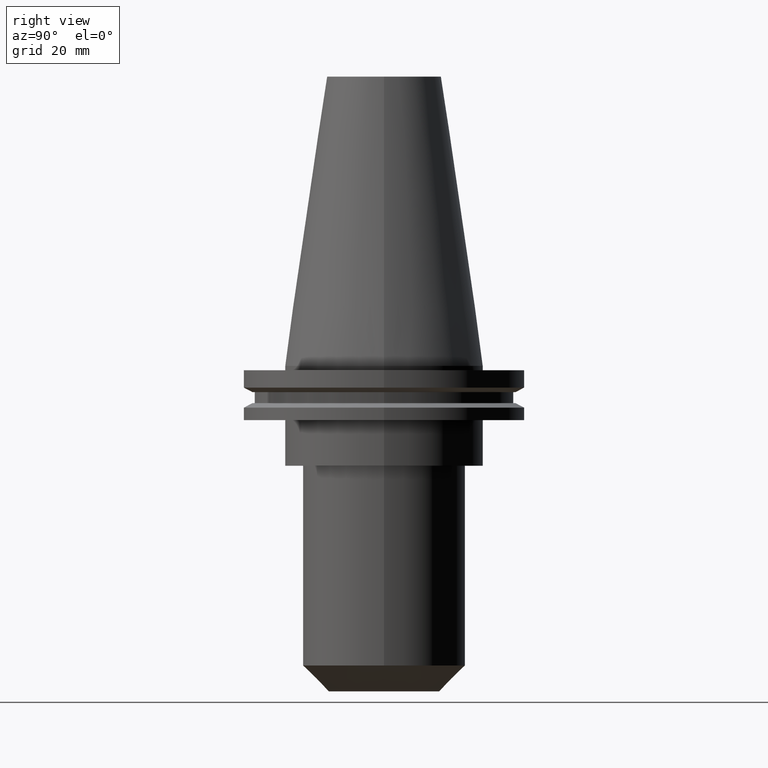
[diagram: clean part render]
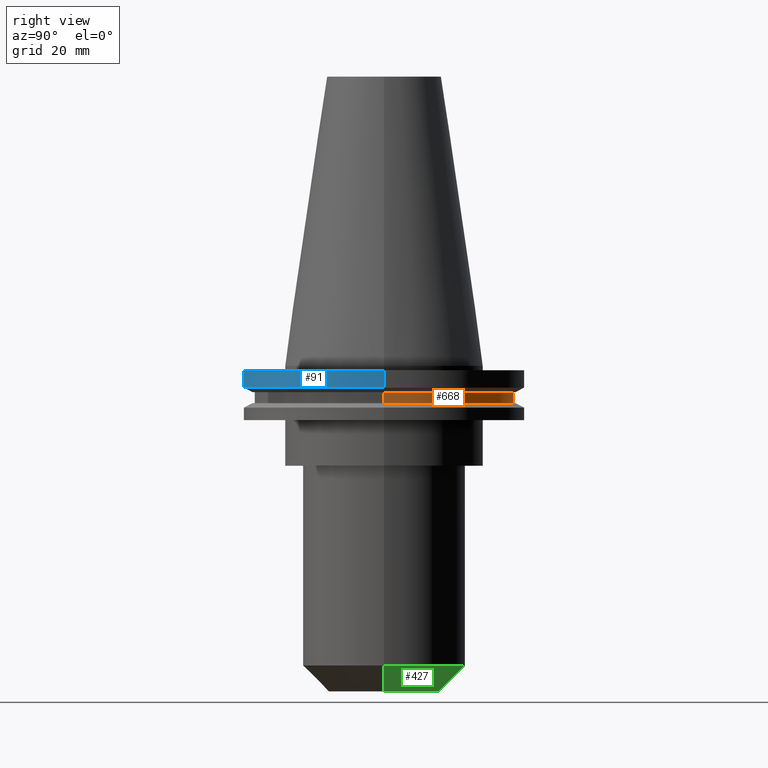
[diagram: same view with three faces highlighted in distinct colors, each labeled with its STEP entity id]
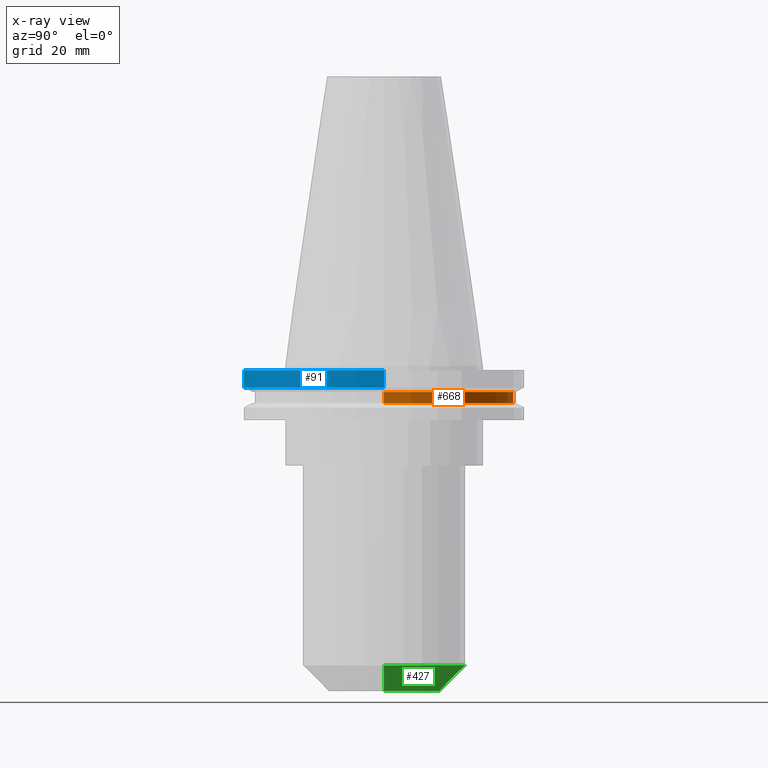
[diagram: x-ray of the same camera — body ghosted, the three highlighted faces saturated]
A machine part, right view with three faces highlighted in distinct colors.
The next image is the same camera in x-ray (body ghosted, the three faces saturated) — at least one of them is partly hidden behind the body in this view.
Their STEP definitions:

[orange] entity #668 — the highlighted cylindrical surface (partial cylindrical patch) has radius 45.645 mm, axis along (-0, -0, 1).
#15 = CARTESIAN_POINT ( 'NONE',  ( 0.000000000000000000, 0.000000000000000000, -9.204999999999991189 ) ) ;
#31 = CARTESIAN_POINT ( 'NONE',  ( -45.64500000000000313, 5.589900314708094957E-15, -9.204999999999991189 ) ) ;
#44 = ORIENTED_EDGE ( 'NONE', *, *, #213, .F. ) ;
#94 = CARTESIAN_POINT ( 'NONE',  ( 45.64500000000000313, 0.000000000000000000, 101.5999999999999943 ) ) ;
#136 = CARTESIAN_POINT ( 'NONE',  ( 0.000000000000000000, 0.000000000000000000, -13.05499999999999794 ) ) ;
#140 = DIRECTION ( 'NONE',  ( -0.000000000000000000, -0.000000000000000000, 1.000000000000000000 ) ) ;
#143 = CARTESIAN_POINT ( 'NONE',  ( 0.000000000000000000, 0.000000000000000000, 101.5999999999999943 ) ) ;
#148 = VECTOR ( 'NONE', #816, 1000.000000000000000 ) ;
#196 = LINE ( 'NONE', #279, #562 ) ;
#199 = AXIS2_PLACEMENT_3D ( 'NONE', #136, #408, #675 ) ;
#205 = DIRECTION ( 'NONE',  ( 1.000000000000000000, 0.000000000000000000, 0.000000000000000000 ) ) ;
#213 = EDGE_CURVE ( 'NONE', #638, #412, #824, .T. ) ;
#279 = CARTESIAN_POINT ( 'NONE',  ( -45.64500000000000313, 5.589900314708094957E-15, 101.5999999999999943 ) ) ;
#282 = DIRECTION ( 'NONE',  ( -0.000000000000000000, -0.000000000000000000, 1.000000000000000000 ) ) ;
#283 = AXIS2_PLACEMENT_3D ( 'NONE', #143, #670, #205 ) ;
#309 = LINE ( 'NONE', #94, #148 ) ;
#349 = AXIS2_PLACEMENT_3D ( 'NONE', #15, #282, #359 ) ;
#352 = EDGE_LOOP ( 'NONE', ( #736, #628, #44, #508 ) ) ;
#359 = DIRECTION ( 'NONE',  ( 1.000000000000000000, 0.000000000000000000, 0.000000000000000000 ) ) ;
#371 = EDGE_CURVE ( 'NONE', #485, #638, #309, .T. ) ;
#405 = FACE_OUTER_BOUND ( 'NONE', #352, .T. ) ;
#408 = DIRECTION ( 'NONE',  ( -0.000000000000000000, -0.000000000000000000, 1.000000000000000000 ) ) ;
#412 = VERTEX_POINT ( 'NONE', #31 ) ;
#447 = VERTEX_POINT ( 'NONE', #625 ) ;
#479 = CARTESIAN_POINT ( 'NONE',  ( 45.64500000000000313, 0.000000000000000000, -9.204999999999991189 ) ) ;
#485 = VERTEX_POINT ( 'NONE', #660 ) ;
#508 = ORIENTED_EDGE ( 'NONE', *, *, #371, .F. ) ;
#562 = VECTOR ( 'NONE', #140, 1000.000000000000000 ) ;
#608 = EDGE_CURVE ( 'NONE', #447, #412, #196, .T. ) ;
#625 = CARTESIAN_POINT ( 'NONE',  ( -45.64500000000000313, 5.589900314708094957E-15, -13.05499999999999794 ) ) ;
#628 = ORIENTED_EDGE ( 'NONE', *, *, #608, .T. ) ;
#638 = VERTEX_POINT ( 'NONE', #479 ) ;
#653 = CIRCLE ( 'NONE', #199, 45.64500000000000313 ) ;
#660 = CARTESIAN_POINT ( 'NONE',  ( 45.64500000000000313, 0.000000000000000000, -13.05499999999999794 ) ) ;
#668 = ADVANCED_FACE ( 'NONE', ( #405 ), #799, .T. ) ;
#670 = DIRECTION ( 'NONE',  ( -0.000000000000000000, -0.000000000000000000, 1.000000000000000000 ) ) ;
#675 = DIRECTION ( 'NONE',  ( 1.000000000000000000, 0.000000000000000000, 0.000000000000000000 ) ) ;
#694 = EDGE_CURVE ( 'NONE', #485, #447, #653, .T. ) ;
#736 = ORIENTED_EDGE ( 'NONE', *, *, #694, .T. ) ;
#799 = CYLINDRICAL_SURFACE ( 'NONE', #283, 45.64500000000000313 ) ;
#816 = DIRECTION ( 'NONE',  ( -0.000000000000000000, -0.000000000000000000, 1.000000000000000000 ) ) ;
#824 = CIRCLE ( 'NONE', #349, 45.64500000000000313 ) ;

[blue] entity #91 — the highlighted cylindrical surface (partial cylindrical patch) has radius 49.215 mm, axis along (-0, -0, 1).
#14 = ORIENTED_EDGE ( 'NONE', *, *, #493, .F. ) ;
#37 = ORIENTED_EDGE ( 'NONE', *, *, #490, .F. ) ;
#55 = CARTESIAN_POINT ( 'NONE',  ( -49.21499999999999631, 6.027099222003697826E-15, -1.499999999999987566 ) ) ;
#91 = ADVANCED_FACE ( 'NONE', ( #181 ), #320, .T. ) ;
#93 = ORIENTED_EDGE ( 'NONE', *, *, #431, .T. ) ;
#97 = CARTESIAN_POINT ( 'NONE',  ( 0.000000000000000000, 0.000000000000000000, -7.602389855251287187 ) ) ;
#110 = VECTOR ( 'NONE', #436, 1000.000000000000000 ) ;
#121 = CIRCLE ( 'NONE', #468, 49.21499999999999631 ) ;
#129 = DIRECTION ( 'NONE',  ( -0.000000000000000000, -0.000000000000000000, 1.000000000000000000 ) ) ;
#133 = CARTESIAN_POINT ( 'NONE',  ( 0.000000000000000000, 0.000000000000000000, 101.5999999999999943 ) ) ;
#153 = VERTEX_POINT ( 'NONE', #55 ) ;
#166 = CARTESIAN_POINT ( 'NONE',  ( 49.21499999999999631, 0.000000000000000000, 101.5999999999999943 ) ) ;
#181 = FACE_OUTER_BOUND ( 'NONE', #406, .T. ) ;
#184 = DIRECTION ( 'NONE',  ( -0.000000000000000000, -0.000000000000000000, 1.000000000000000000 ) ) ;
#200 = VECTOR ( 'NONE', #385, 1000.000000000000000 ) ;
#320 = CYLINDRICAL_SURFACE ( 'NONE', #658, 49.21499999999999631 ) ;
#326 = CARTESIAN_POINT ( 'NONE',  ( -49.21499999999999631, 6.027099222003697826E-15, 101.5999999999999943 ) ) ;
#347 = ORIENTED_EDGE ( 'NONE', *, *, #812, .T. ) ;
#385 = DIRECTION ( 'NONE',  ( -0.000000000000000000, -0.000000000000000000, 1.000000000000000000 ) ) ;
#388 = CARTESIAN_POINT ( 'NONE',  ( 49.21500000000000341, 0.000000000000000000, -7.602389855251287187 ) ) ;
#406 = EDGE_LOOP ( 'NONE', ( #14, #347, #93, #37 ) ) ;
#431 = EDGE_CURVE ( 'NONE', #591, #526, #753, .T. ) ;
#436 = DIRECTION ( 'NONE',  ( -0.000000000000000000, -0.000000000000000000, 1.000000000000000000 ) ) ;
#466 = CARTESIAN_POINT ( 'NONE',  ( -49.21500000000000341, 6.027099222003699404E-15, -7.602389855251287187 ) ) ;
#468 = AXIS2_PLACEMENT_3D ( 'NONE', #534, #184, #783 ) ;
#490 = EDGE_CURVE ( 'NONE', #153, #526, #121, .T. ) ;
#493 = EDGE_CURVE ( 'NONE', #685, #153, #780, .T. ) ;
#526 = VERTEX_POINT ( 'NONE', #531 ) ;
#531 = CARTESIAN_POINT ( 'NONE',  ( 49.21499999999999631, 0.000000000000000000, -1.499999999999987566 ) ) ;
#534 = CARTESIAN_POINT ( 'NONE',  ( 0.000000000000000000, 0.000000000000000000, -1.499999999999987566 ) ) ;
#565 = DIRECTION ( 'NONE',  ( -0.000000000000000000, -0.000000000000000000, 1.000000000000000000 ) ) ;
#591 = VERTEX_POINT ( 'NONE', #388 ) ;
#658 = AXIS2_PLACEMENT_3D ( 'NONE', #133, #129, #671 ) ;
#671 = DIRECTION ( 'NONE',  ( 1.000000000000000000, 0.000000000000000000, 0.000000000000000000 ) ) ;
#685 = VERTEX_POINT ( 'NONE', #466 ) ;
#715 = CIRCLE ( 'NONE', #737, 49.21500000000000341 ) ;
#737 = AXIS2_PLACEMENT_3D ( 'NONE', #97, #565, #813 ) ;
#753 = LINE ( 'NONE', #166, #110 ) ;
#780 = LINE ( 'NONE', #326, #200 ) ;
#783 = DIRECTION ( 'NONE',  ( 1.000000000000000000, 0.000000000000000000, 0.000000000000000000 ) ) ;
#812 = EDGE_CURVE ( 'NONE', #685, #591, #715, .T. ) ;
#813 = DIRECTION ( 'NONE',  ( 1.000000000000000000, 0.000000000000000000, 0.000000000000000000 ) ) ;

[green] entity #427 — the highlighted conical surface has half-angle 45 deg.
#24 = EDGE_CURVE ( 'NONE', #488, #39, #159, .T. ) ;
#32 = VECTOR ( 'NONE', #644, 1000.000000000000000 ) ;
#39 = VERTEX_POINT ( 'NONE', #259 ) ;
#47 = AXIS2_PLACEMENT_3D ( 'NONE', #324, #720, #726 ) ;
#73 = LINE ( 'NONE', #544, #204 ) ;
#159 = CIRCLE ( 'NONE', #47, 28.59999999999999432 ) ;
#169 = VERTEX_POINT ( 'NONE', #475 ) ;
#178 = ORIENTED_EDGE ( 'NONE', *, *, #24, .F. ) ;
#180 = EDGE_CURVE ( 'NONE', #169, #488, #73, .T. ) ;
#204 = VECTOR ( 'NONE', #419, 1000.000000000000000 ) ;
#259 = CARTESIAN_POINT ( 'NONE',  ( -28.59999999999999787, 3.502489845561429418E-15, -105.2000000000000028 ) ) ;
#295 = CARTESIAN_POINT ( 'NONE',  ( 0.000000000000000000, 0.000000000000000000, -114.2999999999999972 ) ) ;
#324 = CARTESIAN_POINT ( 'NONE',  ( 0.000000000000000000, 0.000000000000000000, -105.2000000000000028 ) ) ;
#348 = EDGE_CURVE ( 'NONE', #169, #770, #599, .T. ) ;
#380 = CONICAL_SURFACE ( 'NONE', #853, 19.49999999999998224, 0.7853981633974490562 ) ;
#381 = FACE_OUTER_BOUND ( 'NONE', #756, .T. ) ;
#407 = DIRECTION ( 'NONE',  ( -0.000000000000000000, -0.000000000000000000, 1.000000000000000000 ) ) ;
#419 = DIRECTION ( 'NONE',  ( 0.7071067811865481278, 0.000000000000000000, 0.7071067811865470176 ) ) ;
#427 = ADVANCED_FACE ( 'NONE', ( #381 ), #380, .T. ) ;
#471 = CARTESIAN_POINT ( 'NONE',  ( 0.000000000000000000, 0.000000000000000000, -114.2999999999999972 ) ) ;
#475 = CARTESIAN_POINT ( 'NONE',  ( 19.49999999999998224, 0.000000000000000000, -114.2999999999999972 ) ) ;
#488 = VERTEX_POINT ( 'NONE', #841 ) ;
#499 = ORIENTED_EDGE ( 'NONE', *, *, #180, .F. ) ;
#500 = DIRECTION ( 'NONE',  ( -0.000000000000000000, -0.000000000000000000, 1.000000000000000000 ) ) ;
#544 = CARTESIAN_POINT ( 'NONE',  ( 19.49999999999998224, 0.000000000000000000, -114.2999999999999972 ) ) ;
#561 = DIRECTION ( 'NONE',  ( 1.000000000000000000, 0.000000000000000000, 0.000000000000000000 ) ) ;
#599 = CIRCLE ( 'NONE', #782, 19.49999999999998224 ) ;
#614 = CARTESIAN_POINT ( 'NONE',  ( -19.49999999999998224, 2.945275551949382995E-15, -114.2999999999999972 ) ) ;
#632 = ORIENTED_EDGE ( 'NONE', *, *, #348, .T. ) ;
#644 = DIRECTION ( 'NONE',  ( -0.7071067811865481278, 8.659560562354940254E-17, 0.7071067811865470176 ) ) ;
#674 = DIRECTION ( 'NONE',  ( 1.000000000000000000, 0.000000000000000000, 0.000000000000000000 ) ) ;
#697 = ORIENTED_EDGE ( 'NONE', *, *, #846, .T. ) ;
#720 = DIRECTION ( 'NONE',  ( -0.000000000000000000, -0.000000000000000000, 1.000000000000000000 ) ) ;
#726 = DIRECTION ( 'NONE',  ( 1.000000000000000000, 0.000000000000000000, 0.000000000000000000 ) ) ;
#744 = CARTESIAN_POINT ( 'NONE',  ( -19.49999999999998224, 2.388061258337336572E-15, -114.2999999999999972 ) ) ;
#756 = EDGE_LOOP ( 'NONE', ( #632, #697, #178, #499 ) ) ;
#770 = VERTEX_POINT ( 'NONE', #614 ) ;
#782 = AXIS2_PLACEMENT_3D ( 'NONE', #471, #407, #674 ) ;
#821 = LINE ( 'NONE', #744, #32 ) ;
#841 = CARTESIAN_POINT ( 'NONE',  ( 28.59999999999999432, 0.000000000000000000, -105.2000000000000028 ) ) ;
#846 = EDGE_CURVE ( 'NONE', #770, #39, #821, .T. ) ;
#853 = AXIS2_PLACEMENT_3D ( 'NONE', #295, #500, #561 ) ;